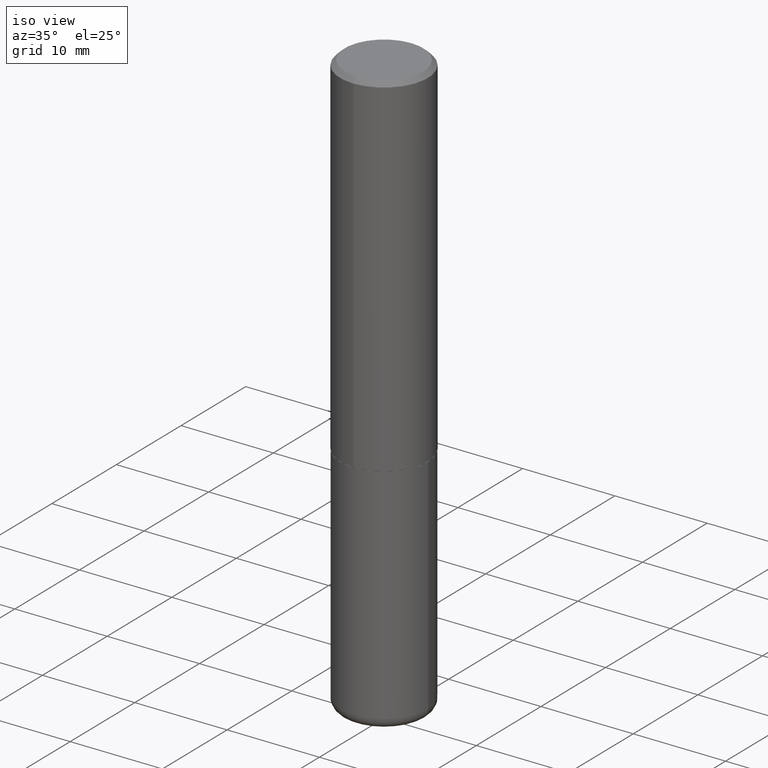
[diagram: clean part render]
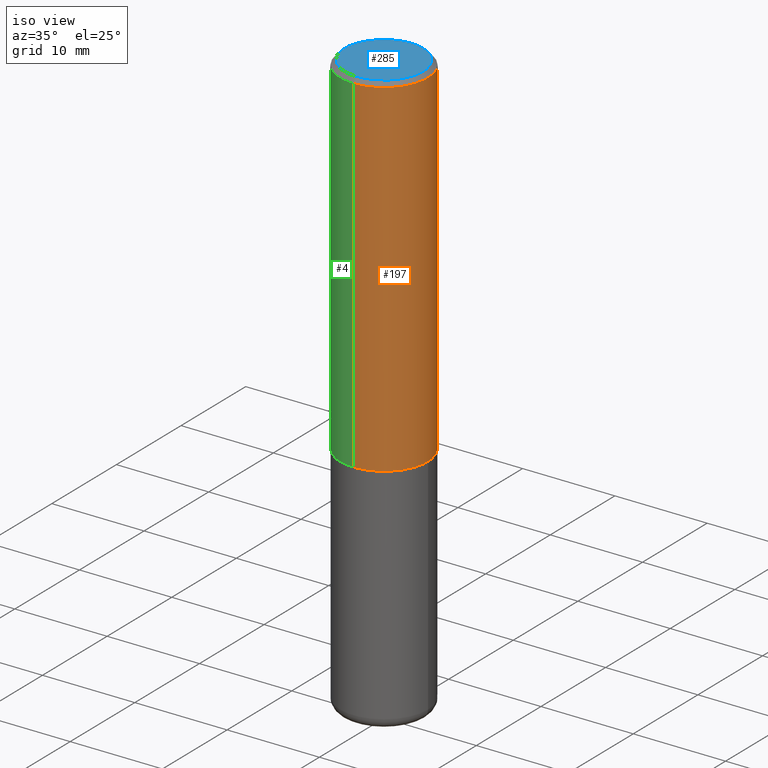
[diagram: same view with three faces highlighted in distinct colors, each labeled with its STEP entity id]
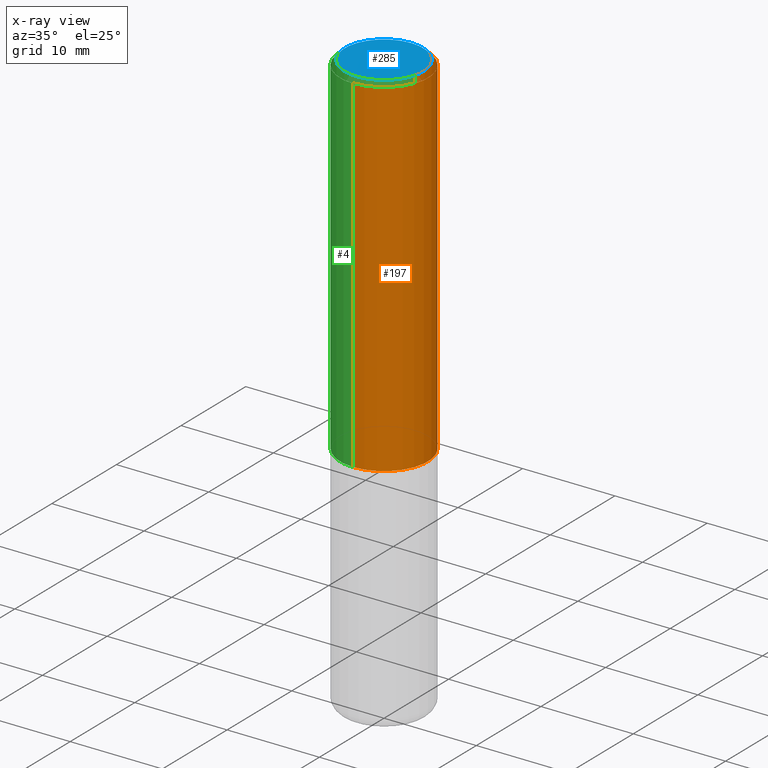
[diagram: x-ray of the same camera — body ghosted, the three highlighted faces saturated]
A machine part, iso view with three faces highlighted in distinct colors.
The next image is the same camera in x-ray (body ghosted, the three faces saturated) — at least one of them is partly hidden behind the body in this view.
Their STEP definitions:

[orange] entity #197 — the highlighted cylindrical surface (partial cylindrical patch) has radius 4.7625 mm, axis along (-0, 0, 1).
#34 = ORIENTED_EDGE ( 'NONE', *, *, #104, .T. ) ;
#41 = AXIS2_PLACEMENT_3D ( 'NONE', #145, #273, #214 ) ;
#44 = ORIENTED_EDGE ( 'NONE', *, *, #62, .F. ) ;
#45 = DIRECTION ( 'NONE',  ( -2.445844892912588876E-29, 3.490942761243906817E-15, 1.000000000000000000 ) ) ;
#48 = LINE ( 'NONE', #179, #223 ) ;
#55 = VERTEX_POINT ( 'NONE', #263 ) ;
#62 = EDGE_CURVE ( 'NONE', #185, #55, #295, .T. ) ;
#81 = DIRECTION ( 'NONE',  ( -2.445844892912589156E-29, 3.490942761243906423E-15, 1.000000000000000000 ) ) ;
#92 = AXIS2_PLACEMENT_3D ( 'NONE', #374, #45, #112 ) ;
#104 = EDGE_CURVE ( 'NONE', #321, #409, #48, .T. ) ;
#108 = EDGE_CURVE ( 'NONE', #185, #321, #335, .T. ) ;
#110 = CYLINDRICAL_SURFACE ( 'NONE', #252, 0.1875000000000000833 ) ;
#112 = DIRECTION ( 'NONE',  ( -6.982962677686266711E-15, -1.000000000000000000, 3.483106191921935949E-15 ) ) ;
#127 = ORIENTED_EDGE ( 'NONE', *, *, #175, .F. ) ;
#145 = CARTESIAN_POINT ( 'NONE',  ( 3.666321494475970828E-29, -5.232923199104616895E-15, -1.499000000000000110 ) ) ;
#148 = EDGE_LOOP ( 'NONE', ( #346, #34, #127, #44 ) ) ;
#155 = CARTESIAN_POINT ( 'NONE',  ( 1.309305502066175205E-15, 0.1874999999999999167, -0.02000000000000069431 ) ) ;
#175 = EDGE_CURVE ( 'NONE', #55, #409, #349, .T. ) ;
#179 = CARTESIAN_POINT ( 'NONE',  ( 1.332267629550188243E-15, 0.1875000000000000833, -6.545517677332327747E-16 ) ) ;
#185 = VERTEX_POINT ( 'NONE', #398 ) ;
#197 = ADVANCED_FACE ( 'NONE', ( #210 ), #110, .T. ) ;
#210 = FACE_OUTER_BOUND ( 'NONE', #148, .T. ) ;
#214 = DIRECTION ( 'NONE',  ( -6.982962677686265922E-15, -1.000000000000000000, 2.913971193241877611E-15 ) ) ;
#217 = CARTESIAN_POINT ( 'NONE',  ( 1.332267629550206781E-15, 0.1874999999999949485, -1.499000000000000554 ) ) ;
#223 = VECTOR ( 'NONE', #81, 39.37007874015748143 ) ;
#229 = DIRECTION ( 'NONE',  ( -2.445844892912589156E-29, 3.490942761243906423E-15, 1.000000000000000000 ) ) ;
#234 = CARTESIAN_POINT ( 'NONE',  ( -1.309305502066175600E-15, -0.1875000000000000833, 6.545517677332327747E-16 ) ) ;
#239 = DIRECTION ( 'NONE',  ( -6.982962677686266711E-15, -1.000000000000000000, 3.490942761243906423E-15 ) ) ;
#252 = AXIS2_PLACEMENT_3D ( 'NONE', #304, #308, #239 ) ;
#263 = CARTESIAN_POINT ( 'NONE',  ( -1.286343374582161379E-15, -0.1875000000000000555, -0.01999999999999938979 ) ) ;
#273 = DIRECTION ( 'NONE',  ( -2.445844892912588876E-29, 3.490942761243906817E-15, 1.000000000000000000 ) ) ;
#295 = LINE ( 'NONE', #234, #322 ) ;
#304 = CARTESIAN_POINT ( 'NONE',  ( 0.000000000000000000, 0.000000000000000000, 0.000000000000000000 ) ) ;
#308 = DIRECTION ( 'NONE',  ( -2.445844892912588876E-29, 3.490942761243906817E-15, 1.000000000000000000 ) ) ;
#321 = VERTEX_POINT ( 'NONE', #217 ) ;
#322 = VECTOR ( 'NONE', #229, 39.37007874015748143 ) ;
#335 = CIRCLE ( 'NONE', #41, 0.1875000000000001943 ) ;
#346 = ORIENTED_EDGE ( 'NONE', *, *, #108, .T. ) ;
#349 = CIRCLE ( 'NONE', #92, 0.1874999999999999722 ) ;
#374 = CARTESIAN_POINT ( 'NONE',  ( 4.891689785825187560E-31, -6.981885522487828820E-17, -0.02000000000000004205 ) ) ;
#398 = CARTESIAN_POINT ( 'NONE',  ( -1.309305502066139509E-15, -0.1875000000000054123, -1.498999999999999444 ) ) ;
#409 = VERTEX_POINT ( 'NONE', #155 ) ;

[blue] entity #285 — the highlighted planar face has unit normal (0, -0, -1).
#54 = CARTESIAN_POINT ( 'NONE',  ( -1.217738394604446442E-15, -0.1675000000000000100, 5.547631133297791179E-16 ) ) ;
#56 = DIRECTION ( 'NONE',  ( -6.982962677686265922E-15, -1.000000000000000000, 3.490942761243906817E-15 ) ) ;
#67 = AXIS2_PLACEMENT_3D ( 'NONE', #271, #111, #338 ) ;
#76 = CIRCLE ( 'NONE', #320, 0.1675000000000000100 ) ;
#91 = EDGE_LOOP ( 'NONE', ( #380, #251 ) ) ;
#111 = DIRECTION ( 'NONE',  ( -2.445844892912588876E-29, 3.490942761243906817E-15, 1.000000000000000000 ) ) ;
#116 = EDGE_CURVE ( 'NONE', #411, #379, #358, .T. ) ;
#149 = CARTESIAN_POINT ( 'NONE',  ( 1.169646248512449595E-15, 0.1675000000000000100, -5.997178120976420969E-16 ) ) ;
#189 = CARTESIAN_POINT ( 'NONE',  ( 1.239475875289312499E-15, 0.1675000000000000100, -6.147027116869298551E-16 ) ) ;
#191 = FACE_OUTER_BOUND ( 'NONE', #91, .T. ) ;
#251 = ORIENTED_EDGE ( 'NONE', *, *, #369, .T. ) ;
#271 = CARTESIAN_POINT ( 'NONE',  ( 7.330148026253442751E-46, -1.046228534983812136E-31, -2.996979917857535013E-17 ) ) ;
#285 = ADVANCED_FACE ( 'NONE', ( #191 ), #319, .F. ) ;
#319 = PLANE ( 'NONE',  #371 ) ;
#320 = AXIS2_PLACEMENT_3D ( 'NONE', #342, #345, #56 ) ;
#338 = DIRECTION ( 'NONE',  ( -6.982962677686265922E-15, -1.000000000000000000, 3.490942761243906817E-15 ) ) ;
#342 = CARTESIAN_POINT ( 'NONE',  ( 7.330148026253442751E-46, -1.046228534983812136E-31, -2.996979917857535013E-17 ) ) ;
#345 = DIRECTION ( 'NONE',  ( -2.445844892912588876E-29, 3.490942761243906817E-15, 1.000000000000000000 ) ) ;
#347 = DIRECTION ( 'NONE',  ( 2.445844892912588876E-29, -3.490942761243906423E-15, -1.000000000000000000 ) ) ;
#351 = DIRECTION ( 'NONE',  ( 6.982962677686265922E-15, 1.000000000000000000, -3.490942761243906423E-15 ) ) ;
#358 = CIRCLE ( 'NONE', #67, 0.1675000000000000100 ) ;
#369 = EDGE_CURVE ( 'NONE', #379, #411, #76, .T. ) ;
#371 = AXIS2_PLACEMENT_3D ( 'NONE', #149, #347, #351 ) ;
#379 = VERTEX_POINT ( 'NONE', #54 ) ;
#380 = ORIENTED_EDGE ( 'NONE', *, *, #116, .T. ) ;
#411 = VERTEX_POINT ( 'NONE', #189 ) ;

[green] entity #4 — the highlighted cylindrical surface (partial cylindrical patch) has radius 4.7625 mm, axis along (-0, 0, 1).
#4 = ADVANCED_FACE ( 'NONE', ( #395 ), #202, .T. ) ;
#10 = AXIS2_PLACEMENT_3D ( 'NONE', #281, #157, #60 ) ;
#24 = CIRCLE ( 'NONE', #339, 0.1874999999999999722 ) ;
#48 = LINE ( 'NONE', #179, #223 ) ;
#55 = VERTEX_POINT ( 'NONE', #263 ) ;
#60 = DIRECTION ( 'NONE',  ( -6.982962677686265922E-15, -1.000000000000000000, 2.913971193241877611E-15 ) ) ;
#62 = EDGE_CURVE ( 'NONE', #185, #55, #295, .T. ) ;
#69 = EDGE_CURVE ( 'NONE', #409, #55, #24, .T. ) ;
#71 = CARTESIAN_POINT ( 'NONE',  ( 0.000000000000000000, 0.000000000000000000, 0.000000000000000000 ) ) ;
#75 = DIRECTION ( 'NONE',  ( -6.982962677686266711E-15, -1.000000000000000000, 3.483106191921935949E-15 ) ) ;
#81 = DIRECTION ( 'NONE',  ( -2.445844892912589156E-29, 3.490942761243906423E-15, 1.000000000000000000 ) ) ;
#89 = ORIENTED_EDGE ( 'NONE', *, *, #62, .T. ) ;
#95 = ORIENTED_EDGE ( 'NONE', *, *, #301, .T. ) ;
#104 = EDGE_CURVE ( 'NONE', #321, #409, #48, .T. ) ;
#117 = ORIENTED_EDGE ( 'NONE', *, *, #69, .F. ) ;
#138 = AXIS2_PLACEMENT_3D ( 'NONE', #71, #331, #262 ) ;
#155 = CARTESIAN_POINT ( 'NONE',  ( 1.309305502066175205E-15, 0.1874999999999999167, -0.02000000000000069431 ) ) ;
#157 = DIRECTION ( 'NONE',  ( -2.445844892912588876E-29, 3.490942761243906817E-15, 1.000000000000000000 ) ) ;
#158 = EDGE_LOOP ( 'NONE', ( #343, #95, #89, #117 ) ) ;
#179 = CARTESIAN_POINT ( 'NONE',  ( 1.332267629550188243E-15, 0.1875000000000000833, -6.545517677332327747E-16 ) ) ;
#185 = VERTEX_POINT ( 'NONE', #398 ) ;
#202 = CYLINDRICAL_SURFACE ( 'NONE', #138, 0.1875000000000000833 ) ;
#217 = CARTESIAN_POINT ( 'NONE',  ( 1.332267629550206781E-15, 0.1874999999999949485, -1.499000000000000554 ) ) ;
#223 = VECTOR ( 'NONE', #81, 39.37007874015748143 ) ;
#229 = DIRECTION ( 'NONE',  ( -2.445844892912589156E-29, 3.490942761243906423E-15, 1.000000000000000000 ) ) ;
#234 = CARTESIAN_POINT ( 'NONE',  ( -1.309305502066175600E-15, -0.1875000000000000833, 6.545517677332327747E-16 ) ) ;
#262 = DIRECTION ( 'NONE',  ( -6.982962677686266711E-15, -1.000000000000000000, 3.490942761243906423E-15 ) ) ;
#263 = CARTESIAN_POINT ( 'NONE',  ( -1.286343374582161379E-15, -0.1875000000000000555, -0.01999999999999938979 ) ) ;
#264 = CIRCLE ( 'NONE', #10, 0.1875000000000001943 ) ;
#281 = CARTESIAN_POINT ( 'NONE',  ( 3.666321494475970828E-29, -5.232923199104616895E-15, -1.499000000000000110 ) ) ;
#295 = LINE ( 'NONE', #234, #322 ) ;
#301 = EDGE_CURVE ( 'NONE', #321, #185, #264, .T. ) ;
#321 = VERTEX_POINT ( 'NONE', #217 ) ;
#322 = VECTOR ( 'NONE', #229, 39.37007874015748143 ) ;
#331 = DIRECTION ( 'NONE',  ( -2.445844892912588876E-29, 3.490942761243906817E-15, 1.000000000000000000 ) ) ;
#339 = AXIS2_PLACEMENT_3D ( 'NONE', #357, #364, #75 ) ;
#343 = ORIENTED_EDGE ( 'NONE', *, *, #104, .F. ) ;
#357 = CARTESIAN_POINT ( 'NONE',  ( 4.891689785825187560E-31, -6.981885522487828820E-17, -0.02000000000000004205 ) ) ;
#364 = DIRECTION ( 'NONE',  ( -2.445844892912588876E-29, 3.490942761243906817E-15, 1.000000000000000000 ) ) ;
#395 = FACE_OUTER_BOUND ( 'NONE', #158, .T. ) ;
#398 = CARTESIAN_POINT ( 'NONE',  ( -1.309305502066139509E-15, -0.1875000000000054123, -1.498999999999999444 ) ) ;
#409 = VERTEX_POINT ( 'NONE', #155 ) ;